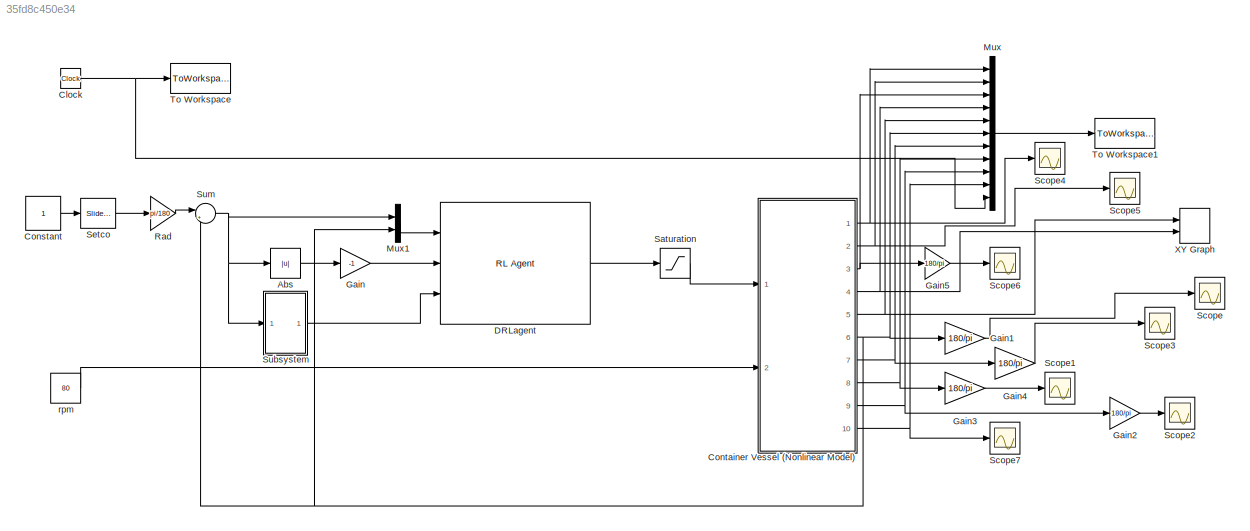
MODEL mdl_35fd8c450e34
KIND model
CONFIG AbsTol = auto
CONFIG EnableMultiTasking = on
CONFIG FixedStep = 0.1
CONFIG MaxStep = auto
CONFIG MinStep = auto
CONFIG RelTol = 1e-3
CONFIG SampleTimeConstraint = Unconstrained
CONFIG SolverName = ode3
CONFIG StartTime = 0.0
CONFIG StopTime = 600.0
BLOCK [Abs] Abs
  SaturateOnIntegerOverflow = off
BLOCK [Clock] Clock
BLOCK [Constant] Constant
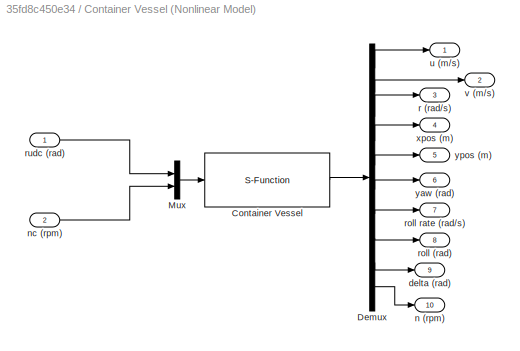
BLOCK [SubSystem] Container Vessel (Nonlinear Model)
  Ports = [2, 10]
  RequestExecContextInheritance = off
BLOCK [S-Function] Container Vessel (Nonlinear Model)/Container Vessel
  EnableBusSupport = off
  FunctionName = ContainerModel
  Ports = [1, 1]
  SFcnIsStateOwnerBlock = off
  SFunctionDeploymentMode = off
BLOCK [Demux] Container Vessel (Nonlinear Model)/Demux
  Outputs = 10
  Ports = [1, 10]
BLOCK [Mux] Container Vessel (Nonlinear Model)/Mux
  DisplayOption = bar
  Inputs = 2
  Ports = [2, 1]
BLOCK [Outport] Container Vessel (Nonlinear Model)/delta (rad)
  Port = 9
BLOCK [Outport] Container Vessel (Nonlinear Model)/n (rpm)
  Port = 10
BLOCK [Inport] Container Vessel (Nonlinear Model)/nc (rpm)
  Port = 2
BLOCK [Outport] Container Vessel (Nonlinear Model)/r (rad//s)
  Port = 3
BLOCK [Outport] Container Vessel (Nonlinear Model)/roll (rad)
  Port = 8
BLOCK [Outport] Container Vessel (Nonlinear Model)/roll rate (rad//s)
  Port = 7
BLOCK [Inport] Container Vessel (Nonlinear Model)/rudc (rad)
BLOCK [Outport] Container Vessel (Nonlinear Model)/u (m//s)
BLOCK [Outport] Container Vessel (Nonlinear Model)/v (m//s)
  Port = 2
BLOCK [Outport] Container Vessel (Nonlinear Model)/xpos (m)
  Port = 4
BLOCK [Outport] Container Vessel (Nonlinear Model)/yaw (rad)
  Port = 6
BLOCK [Outport] Container Vessel (Nonlinear Model)/ypos (m)
  Port = 5
BLOCK [Reference] DRLagent  REF=rllib/RL Agent
  Ports = [3, 1]
  SourceBlock = rllib/RL Agent
  SourceProductBaseCode = RL
  SourceType = RL Agent
BLOCK [Gain] Gain
  Gain = -1
BLOCK [Gain] Gain1
  Gain = 180/pi
BLOCK [Gain] Gain2
  Gain = 180/pi
BLOCK [Gain] Gain3
  Gain = 180/pi
BLOCK [Gain] Gain4
  Gain = 180/pi
BLOCK [Gain] Gain5
  Gain = 180/pi
BLOCK [Mux] Mux
  DisplayOption = bar
  Inputs = 11
  Ports = [11, 1]
BLOCK [Mux] Mux1
  DisplayOption = bar
  Inputs = 2
  Ports = [2, 1]
BLOCK [Gain] Rad
  Gain = pi/180
  OutDataTypeStr = Inherit: Same as input
  ParamDataTypeStr = Inherit: Same as input
  SaturateOnIntegerOverflow = on
BLOCK [Saturate] Saturation
  LowerLimit = -10*pi/180
  UpperLimit = 10*pi/180
BLOCK [Scope] Scope
  Floating = off
  NumInputPorts = 1
  Ports = [1]
  ScopeSpecificationString = C++SS(StrPVP('Location','[188, 390, 512, 629]'),StrPVP('Open','off'),MxPVP('AxesTitles',54,'struct(''axes1'',''%<SignalLabel>'')'),StrPVP('YMin','-30'),StrPVP('YMax','30'),StrPVP('DataFormat','StructureWithTime'),StrPVP('BlockParamSampleTime','0'),StrPVP('LimitDataPoints','on'),StrPVP('Decimation','1'),StrPVP('BlockParamSampleInput','off'))
BLOCK [Scope] Scope1
  Floating = off
  NumInputPorts = 1
  Ports = [1]
  ScopeSpecificationString = C++SS(StrPVP('Location','[188, 390, 512, 629]'),StrPVP('Open','off'),MxPVP('AxesTitles',54,'struct(''axes1'',''%<SignalLabel>'')'),StrPVP('YMin','-9'),StrPVP('YMax','1'),StrPVP('SaveName','ScopeData1'),StrPVP('DataFormat','StructureWithTime'),StrPVP('BlockParamSampleTime','0'),StrPVP('LimitDataPoints','on'),StrPVP('Decimation','1'),StrPVP('BlockParamSampleInput','off'))
BLOCK [Scope] Scope2
  Floating = off
  NumInputPorts = 1
  Ports = [1]
  ScopeSpecificationString = C++SS(StrPVP('Location','[188, 390, 512, 629]'),StrPVP('Open','off'),MxPVP('AxesTitles',54,'struct(''axes1'',''%<SignalLabel>'')'),StrPVP('SaveName','ScopeData2'),StrPVP('DataFormat','StructureWithTime'),StrPVP('BlockParamSampleTime','0'),StrPVP('LimitDataPoints','on'),StrPVP('Decimation','1'),StrPVP('BlockParamSampleInput','off'))
BLOCK [Scope] Scope3
  Floating = off
  NumInputPorts = 1
  Ports = [1]
  ScopeSpecificationString = C++SS(StrPVP('Location','[188, 390, 512, 629]'),StrPVP('Open','off'),MxPVP('AxesTitles',54,'struct(''axes1'',''%<SignalLabel>'')'),StrPVP('SaveName','ScopeData3'),StrPVP('DataFormat','StructureWithTime'),StrPVP('BlockParamSampleTime','0'),StrPVP('LimitDataPoints','on'),StrPVP('Decimation','1'),StrPVP('BlockParamSampleInput','off'))
BLOCK [Scope] Scope4
  Floating = off
  NumInputPorts = 1
  Ports = [1]
  ScopeSpecificationString = C++SS(StrPVP('Location','[188, 390, 512, 629]'),StrPVP('Open','off'),MxPVP('AxesTitles',54,'struct(''axes1'',''%<SignalLabel>'')'),StrPVP('YMin','-9'),StrPVP('YMax','1'),StrPVP('SaveName','ScopeData4'),StrPVP('DataFormat','StructureWithTime'),StrPVP('BlockParamSampleTime','0'),StrPVP('LimitDataPoints','on'),StrPVP('Decimation','1'),StrPVP('BlockParamSampleInput','off'))
BLOCK [Scope] Scope5
  Floating = off
  NumInputPorts = 1
  Ports = [1]
  ScopeSpecificationString = C++SS(StrPVP('Location','[188, 390, 512, 629]'),StrPVP('Open','off'),MxPVP('AxesTitles',54,'struct(''axes1'',''%<SignalLabel>'')'),StrPVP('YMin','-9'),StrPVP('YMax','1'),StrPVP('SaveName','ScopeData5'),StrPVP('DataFormat','StructureWithTime'),StrPVP('BlockParamSampleTime','0'),StrPVP('LimitDataPoints','on'),StrPVP('Decimation','1'),StrPVP('BlockParamSampleInput','off'))
BLOCK [Scope] Scope6
  Floating = off
  NumInputPorts = 1
  Ports = [1]
  ScopeSpecificationString = C++SS(StrPVP('Location','[188, 390, 512, 629]'),StrPVP('Open','off'),MxPVP('AxesTitles',54,'struct(''axes1'',''%<SignalLabel>'')'),StrPVP('YMin','-9'),StrPVP('YMax','1'),StrPVP('SaveName','ScopeData6'),StrPVP('DataFormat','StructureWithTime'),StrPVP('BlockParamSampleTime','0'),StrPVP('LimitDataPoints','on'),StrPVP('Decimation','1'),StrPVP('BlockParamSampleInput','off'))
BLOCK [Scope] Scope7
  Floating = off
  NumInputPorts = 1
  Ports = [1]
  ScopeSpecificationString = C++SS(StrPVP('Location','[188, 390, 512, 629]'),StrPVP('Open','off'),MxPVP('AxesTitles',54,'struct(''axes1'',''%<SignalLabel>'')'),StrPVP('SaveName','ScopeData7'),StrPVP('DataFormat','StructureWithTime'),StrPVP('BlockParamSampleTime','0'),StrPVP('LimitDataPoints','on'),StrPVP('Decimation','1'),StrPVP('BlockParamSampleInput','off'))
BLOCK [Reference] Setco  REF=simulink/Math
Operations/Slider
Gain
  Ports = [1, 1]
  SourceBlock = simulink/Math\nOperations/Slider\nGain
  SourceProductBaseCode = SL
  SourceType = Slider Gain
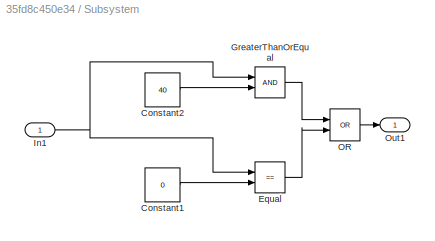
BLOCK [SubSystem] Subsystem
  Ports = [1, 1]
  RequestExecContextInheritance = off
BLOCK [Constant] Subsystem/Constant1
  Value = 0
BLOCK [Constant] Subsystem/Constant2
  Value = 40
BLOCK [RelationalOperator] Subsystem/Equal
  InputSameDT = off
  Operator = ==
  OutDataTypeStr = boolean
  Ports = [2, 1]
  RndMeth = Simplest
BLOCK [RelationalOperator] Subsystem/GreaterThanOrEqual
  InputSameDT = off
  OutDataTypeStr = boolean
  Ports = [2, 1]
  RndMeth = Simplest
BLOCK [Inport] Subsystem/In1
BLOCK [Logic] Subsystem/OR
  AllPortsSameDT = off
  IconShape = distinctive
  Operator = OR
  OutDataTypeStr = boolean
  Ports = [2, 1]
BLOCK [Outport] Subsystem/Out1
BLOCK [Sum] Sum
  Inputs = |+-
  Ports = [2, 1]
BLOCK [ToWorkspace] To Workspace
  MaxDataPoints = inf
  Ports = [1]
  SampleTime = -1
  VariableName = t
BLOCK [ToWorkspace] To Workspace1
  Decimation = 2
  MaxDataPoints = inf
  Ports = [1]
  SampleTime = -1
  VariableName = data
BLOCK [Record] XY Graph
  CompatibilityTag = XY
  FileSettingsInternal = {"entries":[{"content":{"excelSettings":{"content":{},"type":"Streamout.ExcelSettings"}},"type":"Streamout.FileSettingStorage","uuid":"345d6745-98c5-41af-bde2-9f62d2cba1c4"}],"packageUris":["http://schema.mathworks.com/mf0/streamout_blocks/R2020a"],"version":"1.0"}
  Layout = [1 1]
  Ports = [2]
  SignalsInternal = {"entries":[{"content":{"signals":[{"content":{"blockPath":["AutopilotDDPG/XY Graph"],"channel":[],"dimensions":[1],"domain":"AutopilotDDPG/XY Graph","lineColor":"#a2142f","plots":[1],"port":1,"sid":[],"signalID":3397,"signalName":"XY Graph:1"},"type":"RecordBlkView.Signal","uuid":"8219a022-21e8-4bfd-b7ce-82b8fb7c607e"},{"content":{"blockPath":["AutopilotDDPG/XY Graph"],"channel":[],"dimensions":[...<+385ch>
  VisualizationBindings = {"xyplotplugin":{"info":[{"series":[{"bindingParametersList":[{"parameter":"X-Axis","signalID":3397,"signalName":"XY Graph:1"},{"parameter":"Y-Axis","signalID":3400,"signalName":"XY Graph:2"}],"seriesID":24098}],"subplotID":1}]}}
  st = -1
BLOCK [Constant] rpm
  Value = 80
LINE Abs:1 -> Gain:1
NET Clock:1 -> Mux:11, To Workspace:1
LINE Constant:1 -> Setco:1
LINE Container Vessel (Nonlinear Model)/Container Vessel:1 -> Container Vessel (Nonlinear Model)/Demux:1
LINE Container Vessel (Nonlinear Model)/Demux:1 -> Container Vessel (Nonlinear Model)/u (m//s):1
LINE Container Vessel (Nonlinear Model)/Demux:10 -> Container Vessel (Nonlinear Model)/n (rpm):1
LINE Container Vessel (Nonlinear Model)/Demux:2 -> Container Vessel (Nonlinear Model)/v (m//s):1
LINE Container Vessel (Nonlinear Model)/Demux:3 -> Container Vessel (Nonlinear Model)/r (rad//s):1
LINE Container Vessel (Nonlinear Model)/Demux:4 -> Container Vessel (Nonlinear Model)/xpos (m):1
LINE Container Vessel (Nonlinear Model)/Demux:5 -> Container Vessel (Nonlinear Model)/ypos (m):1
LINE Container Vessel (Nonlinear Model)/Demux:6 -> Container Vessel (Nonlinear Model)/yaw (rad):1
LINE Container Vessel (Nonlinear Model)/Demux:7 -> Container Vessel (Nonlinear Model)/roll rate (rad//s):1
LINE Container Vessel (Nonlinear Model)/Demux:8 -> Container Vessel (Nonlinear Model)/roll (rad):1
LINE Container Vessel (Nonlinear Model)/Demux:9 -> Container Vessel (Nonlinear Model)/delta (rad):1
LINE Container Vessel (Nonlinear Model)/Mux:1 -> Container Vessel (Nonlinear Model)/Container Vessel:1
LINE Container Vessel (Nonlinear Model)/nc (rpm):1 -> Container Vessel (Nonlinear Model)/Mux:2
LINE Container Vessel (Nonlinear Model)/rudc (rad):1 -> Container Vessel (Nonlinear Model)/Mux:1
NET Container Vessel (Nonlinear Model):1 -> Mux:1, Scope4:1
NET Container Vessel (Nonlinear Model):10 -> Mux:10, Scope7:1
NET Container Vessel (Nonlinear Model):2 -> Mux:2, Scope5:1
NET Container Vessel (Nonlinear Model):3 -> Gain5:1, Mux:3
NET Container Vessel (Nonlinear Model):4 -> Mux:4, XY Graph:2
NET Container Vessel (Nonlinear Model):5 -> Mux:5, XY Graph:1
NET Container Vessel (Nonlinear Model):6 -> Gain1:1, Mux1:2, Mux:6, Sum:2
NET Container Vessel (Nonlinear Model):7 -> Gain4:1, Mux:7
NET Container Vessel (Nonlinear Model):8 -> Gain3:1, Mux:8
NET Container Vessel (Nonlinear Model):9 -> Gain2:1, Mux:9
LINE DRLagent:1 -> Saturation:1
LINE Gain1:1 -> Scope:1
LINE Gain2:1 -> Scope2:1
LINE Gain3:1 -> Scope1:1
LINE Gain4:1 -> Scope3:1
LINE Gain5:1 -> Scope6:1
LINE Gain:1 -> DRLagent:2
LINE Mux1:1 -> DRLagent:1
LINE Mux:1 -> To Workspace1:1
LINE Rad:1 -> Sum:1
LINE Saturation:1 -> Container Vessel (Nonlinear Model):1
LINE Setco:1 -> Rad:1
LINE Subsystem/Constant1:1 -> Subsystem/Equal:2
LINE Subsystem/Constant2:1 -> Subsystem/GreaterThanOrEqual:2
LINE Subsystem/Equal:1 -> Subsystem/OR:2
LINE Subsystem/GreaterThanOrEqual:1 -> Subsystem/OR:1
NET Subsystem/In1:1 -> Subsystem/Equal:1, Subsystem/GreaterThanOrEqual:1
LINE Subsystem/OR:1 -> Subsystem/Out1:1
LINE Subsystem:1 -> DRLagent:3
NET Sum:1 -> Abs:1, Mux1:1, Subsystem:1
LINE rpm:1 -> Container Vessel (Nonlinear Model):2
note: NET lines group one-source signal fan-out (src -> all destinations, sorted); 1:1 wires keep LINE
